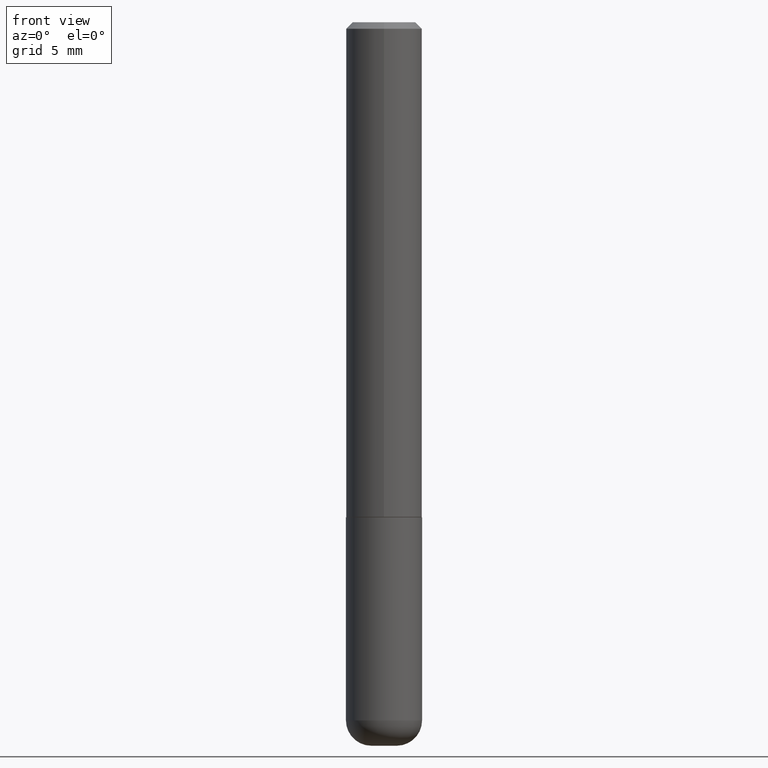
[diagram: clean part render]
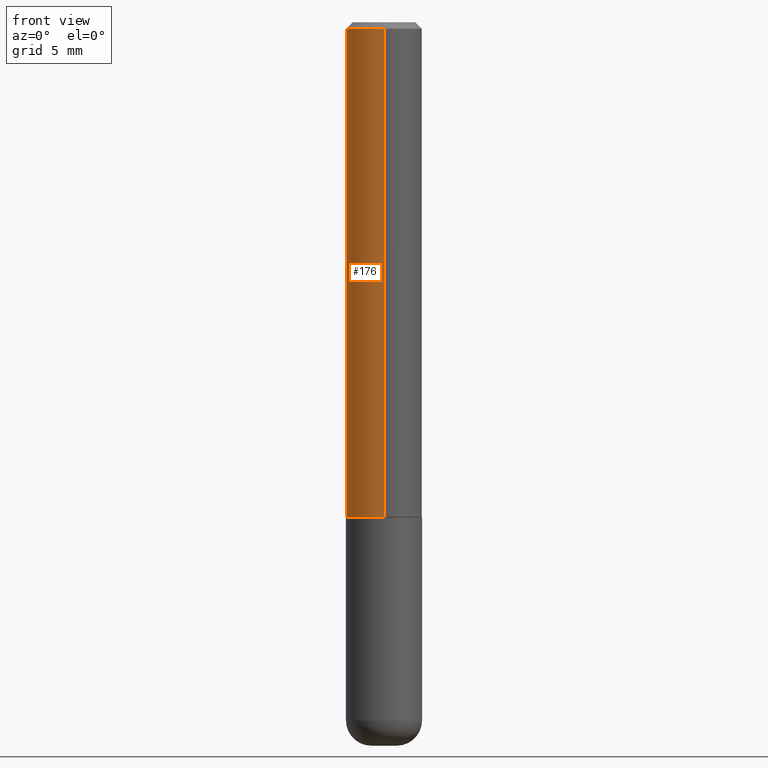
[diagram: same view with one face highlighted and labeled with its STEP entity id]
A machine part, front view. The second image highlights one B-rep face of the part: STEP entity #176.
In plain terms, the highlighted cylindrical surface (partial cylindrical patch) has radius 2.9997 mm, axis along (-0, 0, 1).
Its self-contained STEP definition (entity closure, byte-faithful):
#13 = CARTESIAN_POINT ( 'NONE',  ( 8.391509709326786901E-16, 0.1181000000000000660, -4.115760378825227923E-16 ) ) ;
#27 = EDGE_CURVE ( 'NONE', #355, #411, #174, .T. ) ;
#36 = CIRCLE ( 'NONE', #41, 0.1181000000000001493 ) ;
#41 = AXIS2_PLACEMENT_3D ( 'NONE', #151, #386, #225 ) ;
#59 = VECTOR ( 'NONE', #168, 39.37007874015748143 ) ;
#60 = FACE_OUTER_BOUND ( 'NONE', #408, .T. ) ;
#85 = DIRECTION ( 'NONE',  ( -6.982962677686265922E-15, -1.000000000000000000, 3.484979152265220632E-15 ) ) ;
#95 = AXIS2_PLACEMENT_3D ( 'NONE', #227, #224, #384 ) ;
#101 = ORIENTED_EDGE ( 'NONE', *, *, #135, .T. ) ;
#112 = ORIENTED_EDGE ( 'NONE', *, *, #150, .F. ) ;
#113 = DIRECTION ( 'NONE',  ( -2.450009258804836908E-29, 3.484979152265221421E-15, 1.000000000000000000 ) ) ;
#119 = CARTESIAN_POINT ( 'NONE',  ( -8.246878922347114820E-16, -0.1181000000000054923, -1.534399999999999320 ) ) ;
#135 = EDGE_CURVE ( 'NONE', #355, #137, #36, .T. ) ;
#137 = VERTEX_POINT ( 'NONE', #119 ) ;
#150 = EDGE_CURVE ( 'NONE', #411, #379, #365, .T. ) ;
#151 = CARTESIAN_POINT ( 'NONE',  ( 3.759294206710141458E-29, -5.347352011235754593E-15, -1.534399999999999986 ) ) ;
#165 = CARTESIAN_POINT ( 'NONE',  ( -8.102248135368172434E-16, -0.1181000000000000660, -0.01999999999999965347 ) ) ;
#168 = DIRECTION ( 'NONE',  ( -2.450009258804836908E-29, 3.484979152265221421E-15, 1.000000000000000000 ) ) ;
#174 = LINE ( 'NONE', #13, #380 ) ;
#176 = ADVANCED_FACE ( 'NONE', ( #60 ), #187, .T. ) ;
#187 = CYLINDRICAL_SURFACE ( 'NONE', #212, 0.1181000000000000660 ) ;
#201 = CARTESIAN_POINT ( 'NONE',  ( 8.246878922347484598E-16, 0.1180999999999999273, -0.02000000000000047226 ) ) ;
#208 = ORIENTED_EDGE ( 'NONE', *, *, #387, .T. ) ;
#212 = AXIS2_PLACEMENT_3D ( 'NONE', #262, #414, #85 ) ;
#224 = DIRECTION ( 'NONE',  ( -2.450009258804836628E-29, 3.484979152265221027E-15, 1.000000000000000000 ) ) ;
#225 = DIRECTION ( 'NONE',  ( -6.982962677686265922E-15, -1.000000000000000000, 4.626330217890363814E-15 ) ) ;
#227 = CARTESIAN_POINT ( 'NONE',  ( 4.900018517609688844E-31, -6.969958304530464142E-17, -0.02000000000000006287 ) ) ;
#238 = LINE ( 'NONE', #364, #59 ) ;
#262 = CARTESIAN_POINT ( 'NONE',  ( 0.000000000000000000, 0.000000000000000000, 0.000000000000000000 ) ) ;
#339 = ORIENTED_EDGE ( 'NONE', *, *, #27, .F. ) ;
#355 = VERTEX_POINT ( 'NONE', #369 ) ;
#364 = CARTESIAN_POINT ( 'NONE',  ( -8.246878922347484598E-16, -0.1181000000000000660, 4.115760378825227923E-16 ) ) ;
#365 = CIRCLE ( 'NONE', #95, 0.1180999999999999966 ) ;
#369 = CARTESIAN_POINT ( 'NONE',  ( 8.391509709326979186E-16, 0.1180999999999948064, -1.534400000000000430 ) ) ;
#379 = VERTEX_POINT ( 'NONE', #165 ) ;
#380 = VECTOR ( 'NONE', #113, 39.37007874015748143 ) ;
#384 = DIRECTION ( 'NONE',  ( -6.982962677686265922E-15, -1.000000000000000000, 3.469747663417777397E-15 ) ) ;
#386 = DIRECTION ( 'NONE',  ( -2.450009258804836628E-29, 3.484979152265221027E-15, 1.000000000000000000 ) ) ;
#387 = EDGE_CURVE ( 'NONE', #137, #379, #238, .T. ) ;
#408 = EDGE_LOOP ( 'NONE', ( #339, #101, #208, #112 ) ) ;
#411 = VERTEX_POINT ( 'NONE', #201 ) ;
#414 = DIRECTION ( 'NONE',  ( -2.450009258804836628E-29, 3.484979152265221027E-15, 1.000000000000000000 ) ) ;